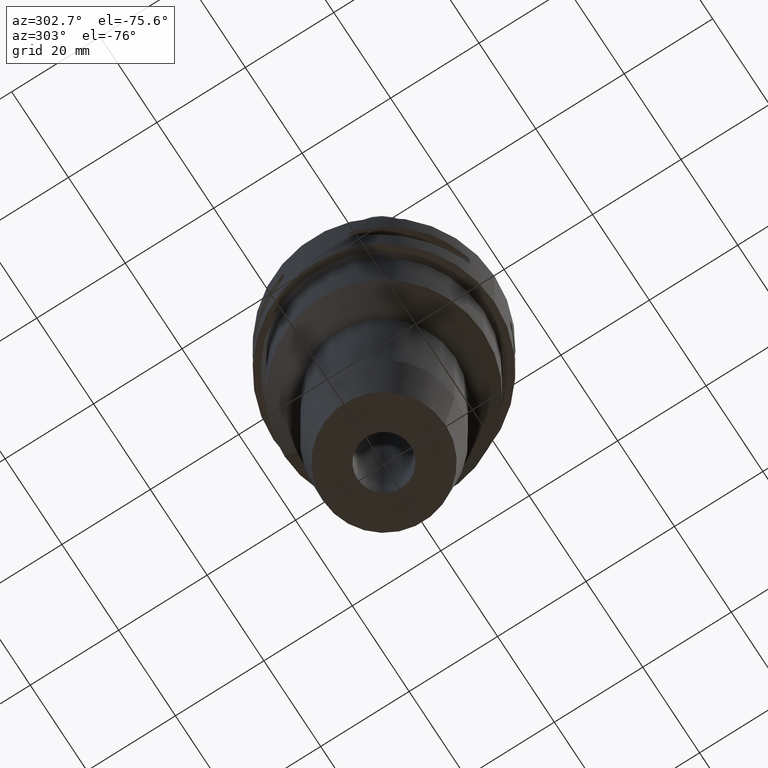
[diagram: clean part render]
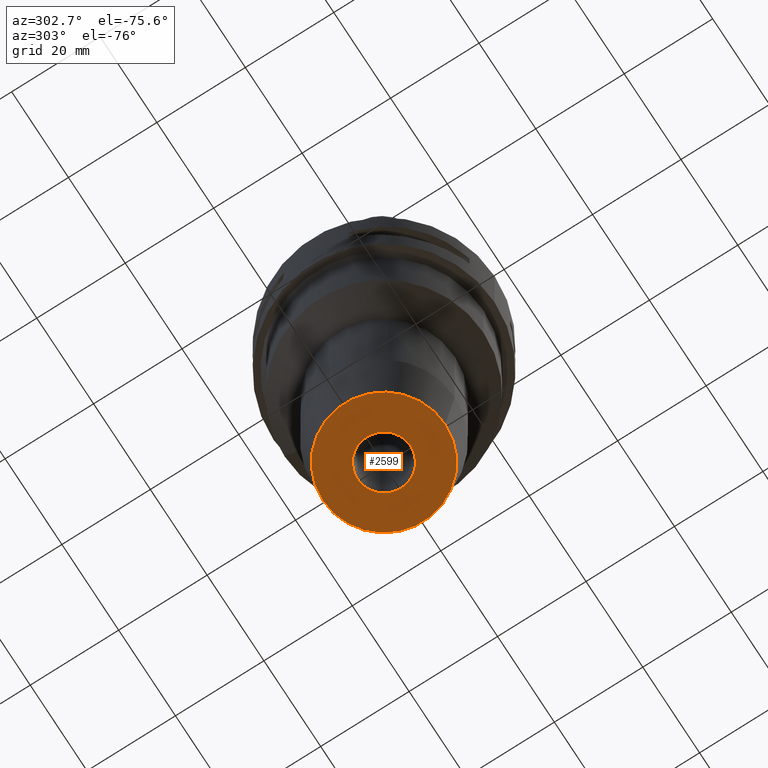
[diagram: same view with one face highlighted and labeled with its STEP entity id]
A machine part, auxiliary view. The second image highlights one B-rep face of the part: STEP entity #2599.
In plain terms, the highlighted planar face has unit normal (0, 0, -1).
Its self-contained STEP definition (entity closure, byte-faithful):
#656=CARTESIAN_POINT('',(0.E0,0.E0,-9.E1));
#657=DIRECTION('',(0.E0,0.E0,1.E0));
#658=DIRECTION('',(0.E0,-1.E0,0.E0));
#659=AXIS2_PLACEMENT_3D('',#656,#657,#658);
#664=CARTESIAN_POINT('',(0.E0,0.E0,-9.E1));
#665=DIRECTION('',(0.E0,0.E0,1.E0));
#666=DIRECTION('',(0.E0,1.E0,0.E0));
#667=AXIS2_PLACEMENT_3D('',#664,#665,#666);
#672=CARTESIAN_POINT('',(0.E0,1.279755905109E-14,-9.E1));
#673=DIRECTION('',(0.E0,0.E0,-1.E0));
#674=DIRECTION('',(0.E0,-1.E0,0.E0));
#675=AXIS2_PLACEMENT_3D('',#672,#673,#674);
#680=CARTESIAN_POINT('',(0.E0,1.279755905109E-14,-9.E1));
#681=DIRECTION('',(0.E0,0.E0,-1.E0));
#682=DIRECTION('',(0.E0,1.E0,0.E0));
#683=AXIS2_PLACEMENT_3D('',#680,#681,#682);
#1622=CARTESIAN_POINT('',(0.E0,1.38455E1,-9.E1));
#1623=VERTEX_POINT('',#1622);
#1624=CARTESIAN_POINT('',(0.E0,-1.38455E1,-9.E1));
#1625=VERTEX_POINT('',#1624);
#1626=CARTESIAN_POINT('',(0.E0,-6.E0,-9.E1));
#1627=CARTESIAN_POINT('',(0.E0,6.E0,-9.E1));
#1628=VERTEX_POINT('',#1626);
#1629=VERTEX_POINT('',#1627);
#2584=CARTESIAN_POINT('',(0.E0,0.E0,-9.E1));
#2585=DIRECTION('',(0.E0,0.E0,-1.E0));
#2586=DIRECTION('',(0.E0,-1.E0,0.E0));
#2587=AXIS2_PLACEMENT_3D('',#2584,#2585,#2586);
#2588=PLANE('',#2587);
#2589=ORIENTED_EDGE('',*,*,#2577,.T.);
#2590=ORIENTED_EDGE('',*,*,#2566,.T.);
#2591=EDGE_LOOP('',(#2589,#2590));
#2592=FACE_OUTER_BOUND('',#2591,.F.);
#2594=ORIENTED_EDGE('',*,*,#2593,.T.);
#2596=ORIENTED_EDGE('',*,*,#2595,.T.);
#2597=EDGE_LOOP('',(#2594,#2596));
#2598=FACE_BOUND('',#2597,.F.);
#660=CIRCLE('',#659,1.38455E1);
#668=CIRCLE('',#667,1.38455E1);
#676=CIRCLE('',#675,6.E0);
#684=CIRCLE('',#683,6.E0);
#2566=EDGE_CURVE('',#1623,#1625,#668,.T.);
#2577=EDGE_CURVE('',#1625,#1623,#660,.T.);
#2593=EDGE_CURVE('',#1628,#1629,#676,.T.);
#2595=EDGE_CURVE('',#1629,#1628,#684,.T.);
#2599=ADVANCED_FACE('',(#2592,#2598),#2588,.T.);